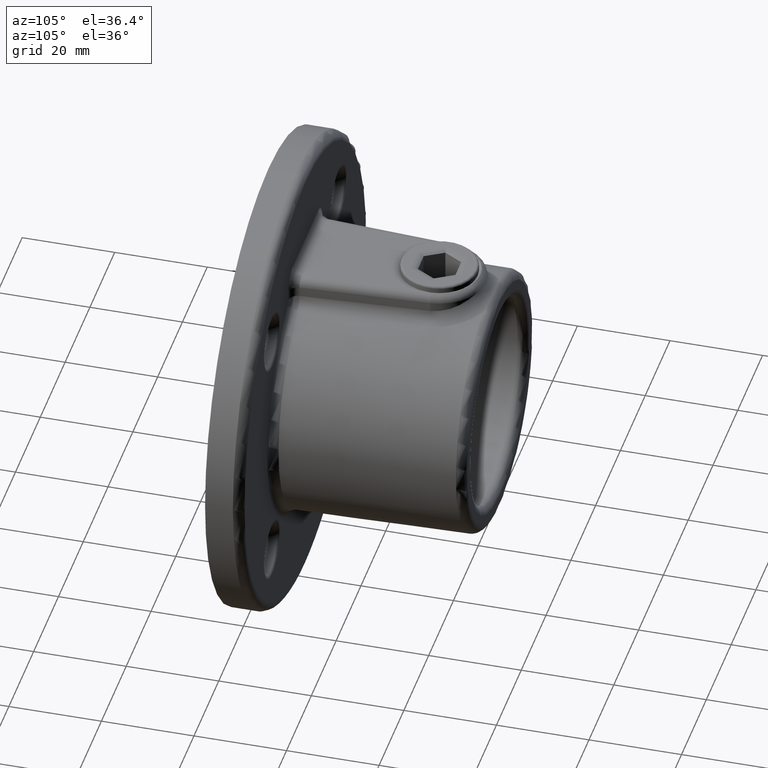
[diagram: clean part render]
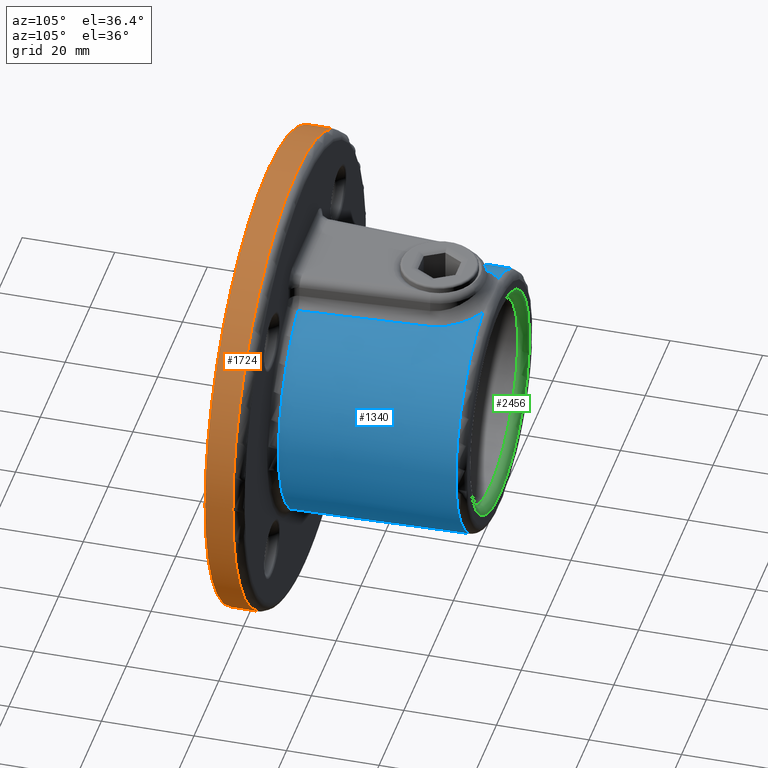
[diagram: same view with three faces highlighted in distinct colors, each labeled with its STEP entity id]
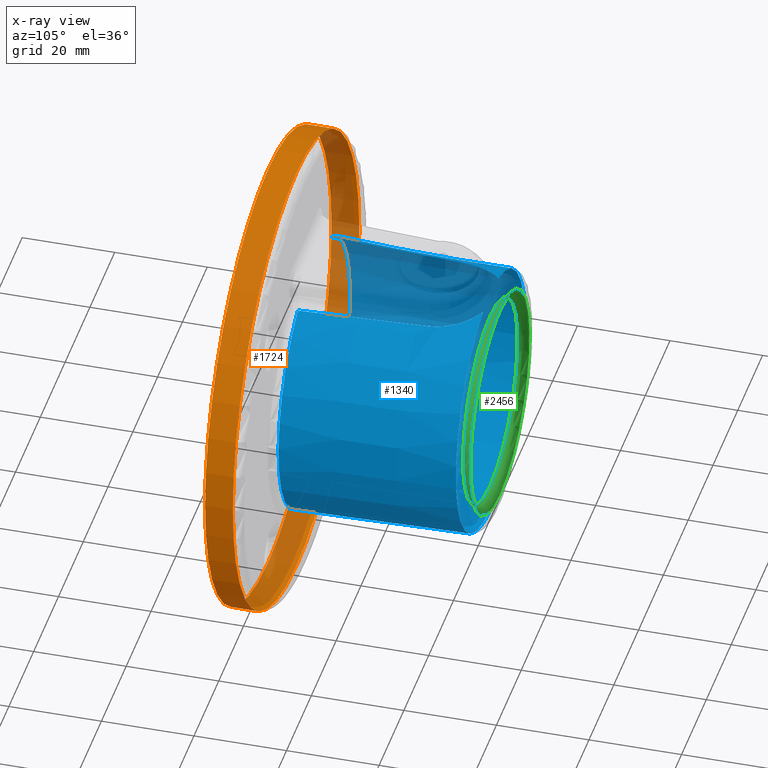
[diagram: x-ray of the same camera — body ghosted, the three highlighted faces saturated]
A machine part, auxiliary view with three faces highlighted in distinct colors.
The next image is the same camera in x-ray (body ghosted, the three faces saturated) — at least one of them is partly hidden behind the body in this view.
Their STEP definitions:

[orange] entity #1724 — the highlighted cylindrical surface (bore or boss wall) has radius 51 mm, axis along (-0, -1, -0).
#1 = CARTESIAN_POINT ( 'NONE',  ( 0.000000000000000000, 6.000000000000000000, 0.000000000000000000 ) ) ;
#174 = AXIS2_PLACEMENT_3D ( 'NONE', #2833, #2121, #1712 ) ;
#208 = DIRECTION ( 'NONE',  ( 0.000000000000000000, 0.000000000000000000, 1.000000000000000000 ) ) ;
#310 = CARTESIAN_POINT ( 'NONE',  ( 0.000000000000000000, 6.000000000000000000, 51.00000000000000000 ) ) ;
#355 = CARTESIAN_POINT ( 'NONE',  ( 0.000000000000000000, 0.000000000000000000, 51.00000000000000000 ) ) ;
#560 = VERTEX_POINT ( 'NONE', #355 ) ;
#911 = DIRECTION ( 'NONE',  ( -0.000000000000000000, -1.000000000000000000, -0.000000000000000000 ) ) ;
#964 = DIRECTION ( 'NONE',  ( 0.000000000000000000, 0.000000000000000000, 1.000000000000000000 ) ) ;
#1140 = ORIENTED_EDGE ( 'NONE', *, *, #1565, .T. ) ;
#1373 = EDGE_CURVE ( 'NONE', #2573, #2573, #2208, .T. ) ;
#1377 = FACE_OUTER_BOUND ( 'NONE', #2129, .T. ) ;
#1443 = CYLINDRICAL_SURFACE ( 'NONE', #174, 51.00000000000000000 ) ;
#1565 = EDGE_CURVE ( 'NONE', #560, #560, #2118, .T. ) ;
#1712 = DIRECTION ( 'NONE',  ( 0.000000000000000000, 0.000000000000000000, -1.000000000000000000 ) ) ;
#1724 = ADVANCED_FACE ( 'NONE', ( #2709, #1377 ), #1443, .T. ) ;
#2040 = EDGE_LOOP ( 'NONE', ( #2097 ) ) ;
#2097 = ORIENTED_EDGE ( 'NONE', *, *, #1373, .T. ) ;
#2118 = CIRCLE ( 'NONE', #2510, 51.00000000000000000 ) ;
#2121 = DIRECTION ( 'NONE',  ( -0.000000000000000000, -1.000000000000000000, -0.000000000000000000 ) ) ;
#2129 = EDGE_LOOP ( 'NONE', ( #1140 ) ) ;
#2208 = CIRCLE ( 'NONE', #2927, 51.00000000000000000 ) ;
#2306 = DIRECTION ( 'NONE',  ( 0.000000000000000000, 1.000000000000000000, 0.000000000000000000 ) ) ;
#2510 = AXIS2_PLACEMENT_3D ( 'NONE', #2520, #2306, #964 ) ;
#2520 = CARTESIAN_POINT ( 'NONE',  ( 0.000000000000000000, 0.000000000000000000, 0.000000000000000000 ) ) ;
#2573 = VERTEX_POINT ( 'NONE', #310 ) ;
#2709 = FACE_OUTER_BOUND ( 'NONE', #2040, .T. ) ;
#2833 = CARTESIAN_POINT ( 'NONE',  ( 0.000000000000000000, 8.000000000000000000, 0.000000000000000000 ) ) ;
#2927 = AXIS2_PLACEMENT_3D ( 'NONE', #1, #911, #208 ) ;

[blue] entity #1340 — the highlighted conical surface has half-angle 1.364 deg.
#74 = AXIS2_PLACEMENT_3D ( 'NONE', #1773, #1095, #1072 ) ;
#98 = CARTESIAN_POINT ( 'NONE',  ( 6.503394355835871110, 47.76705179543915136, 27.29227925668134347 ) ) ;
#179 = EDGE_CURVE ( 'NONE', #2845, #2838, #2206, .T. ) ;
#241 = CARTESIAN_POINT ( 'NONE',  ( 0.000000000000000000, 9.952394444107424576, 0.000000000000000000 ) ) ;
#282 = AXIS2_PLACEMENT_3D ( 'NONE', #241, #2266, #674 ) ;
#286 = FACE_OUTER_BOUND ( 'NONE', #300, .T. ) ;
#300 = EDGE_LOOP ( 'NONE', ( #921, #2084, #1079, #893, #442, #1611 ) ) ;
#317 = CARTESIAN_POINT ( 'NONE',  ( 6.084858191082687107, 48.04760555588445925, 27.37845602469032968 ) ) ;
#330 = CARTESIAN_POINT ( 'NONE',  ( 6.901094725443331690, 47.46112475066982483, 27.20138492798570695 ) ) ;
#363 = CARTESIAN_POINT ( 'NONE',  ( 9.028889431462280513, 45.31199998408782648, 26.63143406410426550 ) ) ;
#413 = CARTESIAN_POINT ( 'NONE',  ( -10.92121458506266585, 41.75266538653819737, 25.99620737654375091 ) ) ;
#442 = ORIENTED_EDGE ( 'NONE', *, *, #179, .T. ) ;
#508 = CARTESIAN_POINT ( 'NONE',  ( -11.72985479980456169, 37.76092052737240579, 25.74517812802490013 ) ) ;
#522 = DIRECTION ( 'NONE',  ( 0.000000000000000000, -1.000000000000000000, 0.000000000000000000 ) ) ;
#544 = CARTESIAN_POINT ( 'NONE',  ( -13.37227048483809888, 9.952394444107422800, 25.68050582121609082 ) ) ;
#595 = CARTESIAN_POINT ( 'NONE',  ( 10.92223279462344898, 41.74979906557629761, 25.99585122933060788 ) ) ;
#606 = CARTESIAN_POINT ( 'NONE',  ( 9.601909603840249829, 44.48944469535894797, 26.44663966094399044 ) ) ;
#629 = B_SPLINE_CURVE_WITH_KNOTS ( 'NONE', 3,
 ( #317, #98, #330, #1741, #820, #363, #606, #1070, #1752, #595, #2897, #2883, #861, #2181, #2670, #1548 ),
 .UNSPECIFIED., .F., .F.,
 ( 4, 2, 2, 2, 2, 2, 2, 4 ),
 ( 0.02518653111829128113, 0.02671553097670441301, 0.02824453083511754142, 0.03130253055194380518, 0.03283153041035694053, 0.03436053026877007588, 0.03588953012718320429, 0.03741852998559633964 ),
 .UNSPECIFIED. ) ;
#640 = CARTESIAN_POINT ( 'NONE',  ( -8.685541931001903748, 45.69656938648136446, 26.72883996729287048 ) ) ;
#652 = VERTEX_POINT ( 'NONE', #2166 ) ;
#674 = DIRECTION ( 'NONE',  ( 0.000000000000000000, 0.000000000000000000, -1.000000000000000000 ) ) ;
#684 = EDGE_CURVE ( 'NONE', #2838, #652, #629, .T. ) ;
#717 = CARTESIAN_POINT ( 'NONE',  ( 0.000000000000000000, 48.04760555589257365, 0.000000000000000000 ) ) ;
#773 = CARTESIAN_POINT ( 'NONE',  ( 11.72985479980456169, 37.76092052737240579, 25.74517812802490013 ) ) ;
#805 = VERTEX_POINT ( 'NONE', #1184 ) ;
#820 = CARTESIAN_POINT ( 'NONE',  ( 8.017356516656903409, 46.44393352720917534, 26.91827139611914177 ) ) ;
#861 = CARTESIAN_POINT ( 'NONE',  ( 11.47152623058346776, 39.79808223635626518, 25.80839601283524942 ) ) ;
#891 = EDGE_CURVE ( 'NONE', #652, #805, #1081, .T. ) ;
#893 = ORIENTED_EDGE ( 'NONE', *, *, #2132, .T. ) ;
#921 = ORIENTED_EDGE ( 'NONE', *, *, #891, .T. ) ;
#973 = CARTESIAN_POINT ( 'NONE',  ( -13.37227048483809888, 9.952394444107422800, 25.68050582121609082 ) ) ;
#980 = CARTESIAN_POINT ( 'NONE',  ( 12.27633263230541871, 28.49132105710235763, 25.73872807306689126 ) ) ;
#1066 = CARTESIAN_POINT ( 'NONE',  ( -11.72985479980456169, 37.76092052737240579, 25.74517812802490013 ) ) ;
#1070 = CARTESIAN_POINT ( 'NONE',  ( 10.32297127896624112, 43.15744677002902563, 26.20401514103793872 ) ) ;
#1072 = DIRECTION ( 'NONE',  ( 0.000000000000000000, 0.000000000000000000, -1.000000000000000000 ) ) ;
#1079 = ORIENTED_EDGE ( 'NONE', *, *, #1518, .T. ) ;
#1081 = B_SPLINE_CURVE_WITH_KNOTS ( 'NONE', 3,
 ( #773, #980, #2794, #1465 ),
 .UNSPECIFIED., .F., .F.,
 ( 4, 4 ),
 ( 0.000000000000000000, 0.02785708690359818551 ),
 .UNSPECIFIED. ) ;
#1095 = DIRECTION ( 'NONE',  ( 0.000000000000000000, -1.000000000000000000, 0.000000000000000000 ) ) ;
#1099 = CARTESIAN_POINT ( 'NONE',  ( -6.929473721341332215, 47.48144166588065929, 27.20454934054354368 ) ) ;
#1184 = CARTESIAN_POINT ( 'NONE',  ( 13.37227048483809888, 9.952394444107421023, 25.68050582121609082 ) ) ;
#1207 = CARTESIAN_POINT ( 'NONE',  ( -12.82382559046411075, 19.22180671094484694, 25.71726149852769083 ) ) ;
#1323 = B_SPLINE_CURVE_WITH_KNOTS ( 'NONE', 3,
 ( #973, #1207, #1442, #508 ),
 .UNSPECIFIED., .F., .F.,
 ( 4, 4 ),
 ( 0.001955825896140116118, 0.02981291309381531307 ),
 .UNSPECIFIED. ) ;
#1340 = ADVANCED_FACE ( 'NONE', ( #286 ), #1760, .T. ) ;
#1346 = CARTESIAN_POINT ( 'NONE',  ( -11.08693725335712799, 41.26619378316906506, 25.93817969717912320 ) ) ;
#1442 = CARTESIAN_POINT ( 'NONE',  ( -12.27633263395428997, 28.49132102913361209, 25.73872807304743660 ) ) ;
#1465 = CARTESIAN_POINT ( 'NONE',  ( 13.37227048483809888, 9.952394444107421023, 25.68050582121609082 ) ) ;
#1501 = EDGE_CURVE ( 'NONE', #805, #2033, #1863, .T. ) ;
#1518 = EDGE_CURVE ( 'NONE', #2033, #2594, #1323, .T. ) ;
#1548 = CARTESIAN_POINT ( 'NONE',  ( 11.72985479980456169, 37.76092052737240579, 25.74517812802490013 ) ) ;
#1583 = CARTESIAN_POINT ( 'NONE',  ( -10.53945643085118000, 42.69740218181819102, 26.12905675791444082 ) ) ;
#1611 = ORIENTED_EDGE ( 'NONE', *, *, #684, .T. ) ;
#1741 = CARTESIAN_POINT ( 'NONE',  ( 7.657321068236525363, 46.80043854266819636, 27.01460620994438599 ) ) ;
#1743 = CARTESIAN_POINT ( 'NONE',  ( 6.084858191082687107, 48.04760555588445925, 27.37845602469032968 ) ) ;
#1752 = CARTESIAN_POINT ( 'NONE',  ( 10.54105748024671740, 42.69378425087878526, 26.12850140740303218 ) ) ;
#1760 = CONICAL_SURFACE ( 'NONE', #74, 28.00000000000000000, 0.02380502618506996279 ) ;
#1773 = CARTESIAN_POINT ( 'NONE',  ( 0.000000000000000000, 50.00000000000000000, 0.000000000000000000 ) ) ;
#1782 = CARTESIAN_POINT ( 'NONE',  ( -10.32416629257263807, 43.15492684250455113, 26.20360195415353743 ) ) ;
#1790 = CARTESIAN_POINT ( 'NONE',  ( -6.084858191070572353, 48.04760555589257365, 27.37845602469282369 ) ) ;
#1791 = AXIS2_PLACEMENT_3D ( 'NONE', #717, #522, #2102 ) ;
#1863 = CIRCLE ( 'NONE', #282, 28.95351441799744308 ) ;
#1927 = CARTESIAN_POINT ( 'NONE',  ( -6.084858191070572353, 48.04760555589257365, 27.37845602469282369 ) ) ;
#2003 = CARTESIAN_POINT ( 'NONE',  ( -9.844814253508667790, 44.04104341979687121, 26.36491753557126572 ) ) ;
#2033 = VERTEX_POINT ( 'NONE', #544 ) ;
#2084 = ORIENTED_EDGE ( 'NONE', *, *, #1501, .T. ) ;
#2102 = DIRECTION ( 'NONE',  ( 0.000000000000000000, 0.000000000000000000, -1.000000000000000000 ) ) ;
#2132 = EDGE_CURVE ( 'NONE', #2594, #2845, #2419, .T. ) ;
#2166 = CARTESIAN_POINT ( 'NONE',  ( 11.72985479980456169, 37.76092052737240579, 25.74517812802490013 ) ) ;
#2181 = CARTESIAN_POINT ( 'NONE',  ( 11.64107308311923106, 38.79028049743239848, 25.75869959362175265 ) ) ;
#2206 = CIRCLE ( 'NONE', #1791, 28.04648558200256048 ) ;
#2228 = CARTESIAN_POINT ( 'NONE',  ( -7.680718540354884105, 46.81992659085945974, 27.01364225212643788 ) ) ;
#2236 = CARTESIAN_POINT ( 'NONE',  ( -9.580760807207850505, 44.46963846356025130, 26.45169623002061243 ) ) ;
#2252 = CARTESIAN_POINT ( 'NONE',  ( -9.001507031487212984, 45.29730006813242937, 26.63358278819257308 ) ) ;
#2266 = DIRECTION ( 'NONE',  ( -0.000000000000000000, 1.000000000000000000, -0.000000000000000000 ) ) ;
#2419 = B_SPLINE_CURVE_WITH_KNOTS ( 'NONE', 3,
 ( #1066, #2651, #2698, #1346, #413, #1583, #1782, #2003, #2236, #2252, #640, #2228, #1099, #1790 ),
 .UNSPECIFIED., .F., .F.,
 ( 4, 2, 2, 2, 2, 2, 4 ),
 ( 0.000000000000000000, 0.003058146988102727545, 0.004587220482154082644, 0.006116293976205437743, 0.007645367470256791108, 0.009174440964308146207, 0.01223258795241085120 ),
 .UNSPECIFIED. ) ;
#2594 = VERTEX_POINT ( 'NONE', #2840 ) ;
#2651 = CARTESIAN_POINT ( 'NONE',  ( -11.66909861237776802, 38.79149393637921861, 25.74589523075924191 ) ) ;
#2670 = CARTESIAN_POINT ( 'NONE',  ( 11.69946561004925911, 38.27639544786245551, 25.74553681035826358 ) ) ;
#2698 = CARTESIAN_POINT ( 'NONE',  ( -11.49997972639895316, 39.79627283648245850, 25.79725885206519109 ) ) ;
#2794 = CARTESIAN_POINT ( 'NONE',  ( 12.82382572505298057, 19.22180443622275448, 25.71726148950781266 ) ) ;
#2838 = VERTEX_POINT ( 'NONE', #1743 ) ;
#2840 = CARTESIAN_POINT ( 'NONE',  ( -11.72985479980456169, 37.76092052737240579, 25.74517812802490013 ) ) ;
#2845 = VERTEX_POINT ( 'NONE', #1927 ) ;
#2883 = CARTESIAN_POINT ( 'NONE',  ( 11.36036267283366996, 40.29391084529499523, 25.84488222958557557 ) ) ;
#2897 = CARTESIAN_POINT ( 'NONE',  ( 11.08571281097310113, 41.26976854688216179, 25.93860841067946410 ) ) ;

[green] entity #2456 — the highlighted toroidal blend (fillet) surface has major radius 24 mm and minor (blend) radius 2 mm.
#144 = EDGE_LOOP ( 'NONE', ( #1355 ) ) ;
#158 = VERTEX_POINT ( 'NONE', #1200 ) ;
#213 = CIRCLE ( 'NONE', #2719, 22.00000000000000000 ) ;
#247 = CARTESIAN_POINT ( 'NONE',  ( 0.000000000000000000, 50.00000000000000000, 0.000000000000000000 ) ) ;
#476 = CARTESIAN_POINT ( 'NONE',  ( 0.000000000000000000, 48.00000000000000000, 0.000000000000000000 ) ) ;
#648 = DIRECTION ( 'NONE',  ( -0.000000000000000000, 1.000000000000000000, -0.000000000000000000 ) ) ;
#934 = VERTEX_POINT ( 'NONE', #1188 ) ;
#1096 = CARTESIAN_POINT ( 'NONE',  ( 0.000000000000000000, 48.00000000000000000, 0.000000000000000000 ) ) ;
#1152 = EDGE_CURVE ( 'NONE', #934, #934, #2492, .T. ) ;
#1188 = CARTESIAN_POINT ( 'NONE',  ( 0.000000000000000000, 50.00000000000000000, -24.00000000000000000 ) ) ;
#1196 = EDGE_CURVE ( 'NONE', #158, #158, #213, .T. ) ;
#1200 = CARTESIAN_POINT ( 'NONE',  ( 0.000000000000000000, 48.00000000000000000, -22.00000000000000000 ) ) ;
#1355 = ORIENTED_EDGE ( 'NONE', *, *, #1152, .F. ) ;
#1406 = DIRECTION ( 'NONE',  ( 0.000000000000000000, -1.000000000000000000, 0.000000000000000000 ) ) ;
#1620 = AXIS2_PLACEMENT_3D ( 'NONE', #247, #1406, #2740 ) ;
#1688 = EDGE_LOOP ( 'NONE', ( #2668 ) ) ;
#1742 = AXIS2_PLACEMENT_3D ( 'NONE', #1096, #2674, #2233 ) ;
#1756 = FACE_OUTER_BOUND ( 'NONE', #1688, .T. ) ;
#1862 = TOROIDAL_SURFACE ( 'NONE', #1742, 24.00000000000000000, 2.000000000000000000 ) ;
#2110 = FACE_OUTER_BOUND ( 'NONE', #144, .T. ) ;
#2233 = DIRECTION ( 'NONE',  ( 0.000000000000000000, 0.000000000000000000, -1.000000000000000000 ) ) ;
#2234 = DIRECTION ( 'NONE',  ( 0.000000000000000000, 0.000000000000000000, -1.000000000000000000 ) ) ;
#2456 = ADVANCED_FACE ( 'NONE', ( #2110, #1756 ), #1862, .T. ) ;
#2492 = CIRCLE ( 'NONE', #1620, 24.00000000000000000 ) ;
#2668 = ORIENTED_EDGE ( 'NONE', *, *, #1196, .F. ) ;
#2674 = DIRECTION ( 'NONE',  ( 0.000000000000000000, -1.000000000000000000, 0.000000000000000000 ) ) ;
#2719 = AXIS2_PLACEMENT_3D ( 'NONE', #476, #648, #2234 ) ;
#2740 = DIRECTION ( 'NONE',  ( 0.000000000000000000, 0.000000000000000000, -1.000000000000000000 ) ) ;